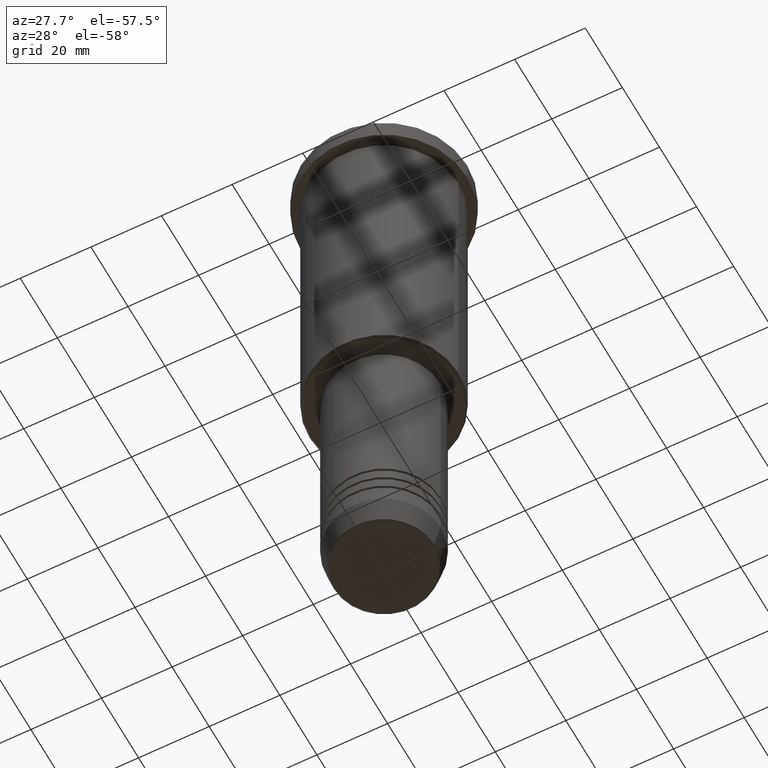
[diagram: clean part render]
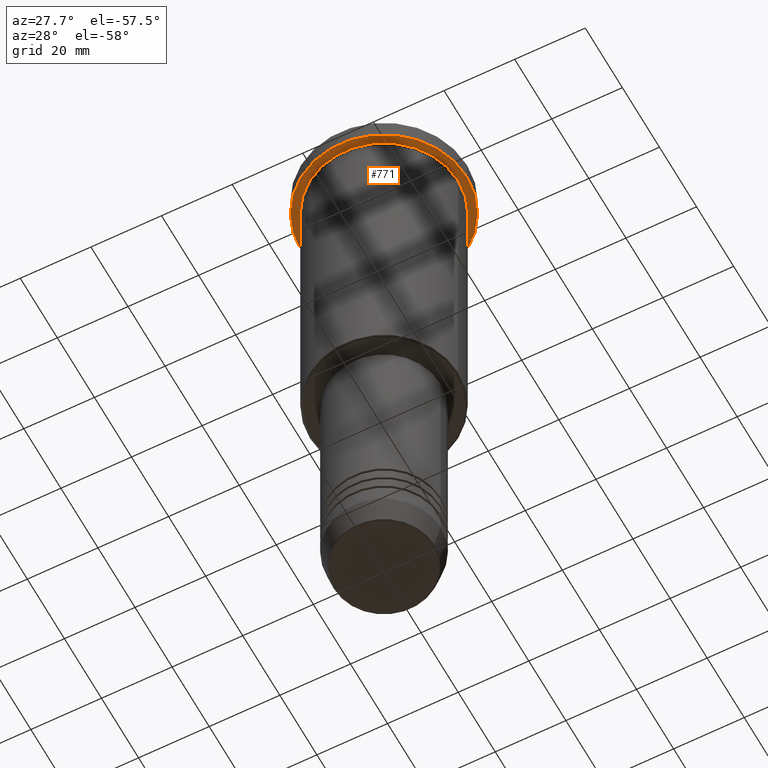
[diagram: same view with one face highlighted and labeled with its STEP entity id]
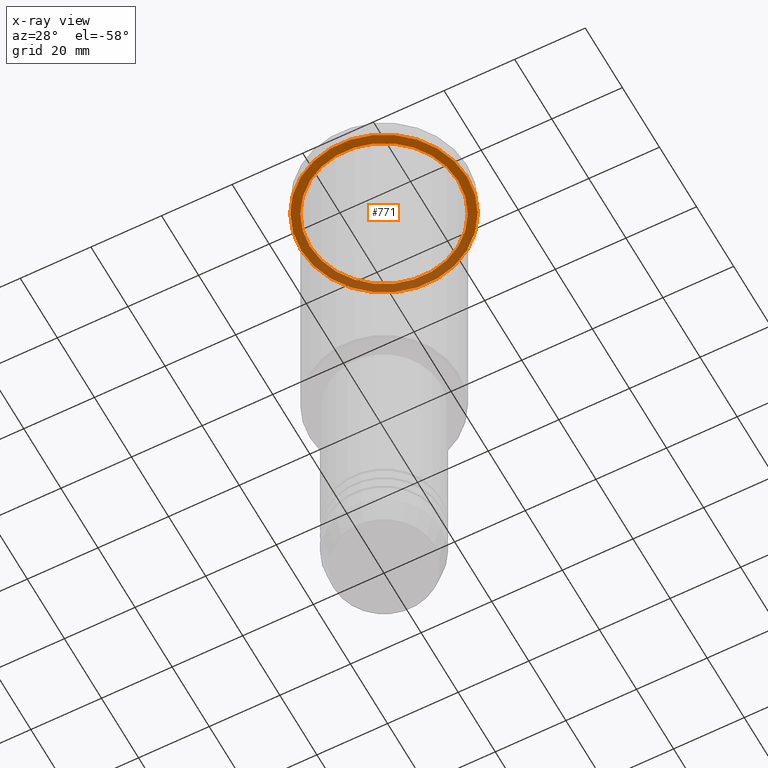
[diagram: x-ray of the same camera — body ghosted, the highlighted face saturated]
A machine part, auxiliary view. The second image highlights one B-rep face of the part: STEP entity #771.
The next image is the same camera in x-ray: the body ghosted, the highlighted face saturated — about 39% of this face is hidden behind the body in this view.
In plain terms, the highlighted planar face has unit normal (0, 0, -1).
Its self-contained STEP definition (entity closure, byte-faithful):
#3 = DIRECTION ( 'NONE',  ( -1.000000000000000000, 0.000000000000000000, -0.000000000000000000 ) ) ;
#38 = AXIS2_PLACEMENT_3D ( 'NONE', #930, #849, #375 ) ;
#42 = EDGE_CURVE ( 'NONE', #1015, #846, #673, .T. ) ;
#79 = PLANE ( 'NONE',  #115 ) ;
#88 = CARTESIAN_POINT ( 'NONE',  ( 0.000000000000000000, 0.000000000000000000, -5.999999999999993783 ) ) ;
#115 = AXIS2_PLACEMENT_3D ( 'NONE', #1086, #901, #3 ) ;
#120 = EDGE_CURVE ( 'NONE', #200, #790, #1045, .T. ) ;
#184 = ORIENTED_EDGE ( 'NONE', *, *, #891, .T. ) ;
#200 = VERTEX_POINT ( 'NONE', #248 ) ;
#210 = CARTESIAN_POINT ( 'NONE',  ( 23.50000000000000000, 0.000000000000000000, -5.999999999999993783 ) ) ;
#216 = DIRECTION ( 'NONE',  ( 1.000000000000000000, 0.000000000000000000, 0.000000000000000000 ) ) ;
#248 = CARTESIAN_POINT ( 'NONE',  ( 21.00000000000000000, 2.571758278209441661E-15, -5.999999999999992895 ) ) ;
#258 = ORIENTED_EDGE ( 'NONE', *, *, #120, .T. ) ;
#295 = DIRECTION ( 'NONE',  ( -1.000000000000000000, 0.000000000000000000, 0.000000000000000000 ) ) ;
#369 = ORIENTED_EDGE ( 'NONE', *, *, #42, .F. ) ;
#375 = DIRECTION ( 'NONE',  ( -1.000000000000000000, 0.000000000000000000, 0.000000000000000000 ) ) ;
#391 = CARTESIAN_POINT ( 'NONE',  ( 0.000000000000000000, 0.000000000000000000, -5.999999999999993783 ) ) ;
#432 = AXIS2_PLACEMENT_3D ( 'NONE', #88, #445, #1072 ) ;
#445 = DIRECTION ( 'NONE',  ( -0.000000000000000000, -0.000000000000000000, 1.000000000000000000 ) ) ;
#448 = ORIENTED_EDGE ( 'NONE', *, *, #1153, .F. ) ;
#460 = CARTESIAN_POINT ( 'NONE',  ( -21.00000000000000000, 0.000000000000000000, -5.999999999999992895 ) ) ;
#471 = CIRCLE ( 'NONE', #432, 23.50000000000000000 ) ;
#499 = EDGE_LOOP ( 'NONE', ( #448, #369 ) ) ;
#556 = CIRCLE ( 'NONE', #38, 21.00000000000000000 ) ;
#600 = CARTESIAN_POINT ( 'NONE',  ( 0.000000000000000000, 0.000000000000000000, -5.999999999999993783 ) ) ;
#673 = CIRCLE ( 'NONE', #1121, 23.50000000000000000 ) ;
#771 = ADVANCED_FACE ( 'NONE', ( #1080, #820 ), #79, .T. ) ;
#790 = VERTEX_POINT ( 'NONE', #460 ) ;
#820 = FACE_OUTER_BOUND ( 'NONE', #499, .T. ) ;
#846 = VERTEX_POINT ( 'NONE', #210 ) ;
#849 = DIRECTION ( 'NONE',  ( -0.000000000000000000, -0.000000000000000000, 1.000000000000000000 ) ) ;
#886 = EDGE_LOOP ( 'NONE', ( #184, #258 ) ) ;
#891 = EDGE_CURVE ( 'NONE', #790, #200, #556, .T. ) ;
#901 = DIRECTION ( 'NONE',  ( 0.000000000000000000, 0.000000000000000000, -1.000000000000000000 ) ) ;
#930 = CARTESIAN_POINT ( 'NONE',  ( 0.000000000000000000, 0.000000000000000000, -5.999999999999993783 ) ) ;
#948 = AXIS2_PLACEMENT_3D ( 'NONE', #600, #953, #295 ) ;
#953 = DIRECTION ( 'NONE',  ( -0.000000000000000000, -0.000000000000000000, 1.000000000000000000 ) ) ;
#971 = CARTESIAN_POINT ( 'NONE',  ( -23.50000000000000000, 2.877919977996280320E-15, -5.999999999999993783 ) ) ;
#1015 = VERTEX_POINT ( 'NONE', #971 ) ;
#1045 = CIRCLE ( 'NONE', #948, 21.00000000000000000 ) ;
#1050 = DIRECTION ( 'NONE',  ( -0.000000000000000000, -0.000000000000000000, 1.000000000000000000 ) ) ;
#1072 = DIRECTION ( 'NONE',  ( 1.000000000000000000, 0.000000000000000000, 0.000000000000000000 ) ) ;
#1080 = FACE_BOUND ( 'NONE', #886, .T. ) ;
#1086 = CARTESIAN_POINT ( 'NONE',  ( 0.000000000000000000, 23.50000000000000000, -5.999999999999993783 ) ) ;
#1121 = AXIS2_PLACEMENT_3D ( 'NONE', #391, #1050, #216 ) ;
#1153 = EDGE_CURVE ( 'NONE', #846, #1015, #471, .T. ) ;